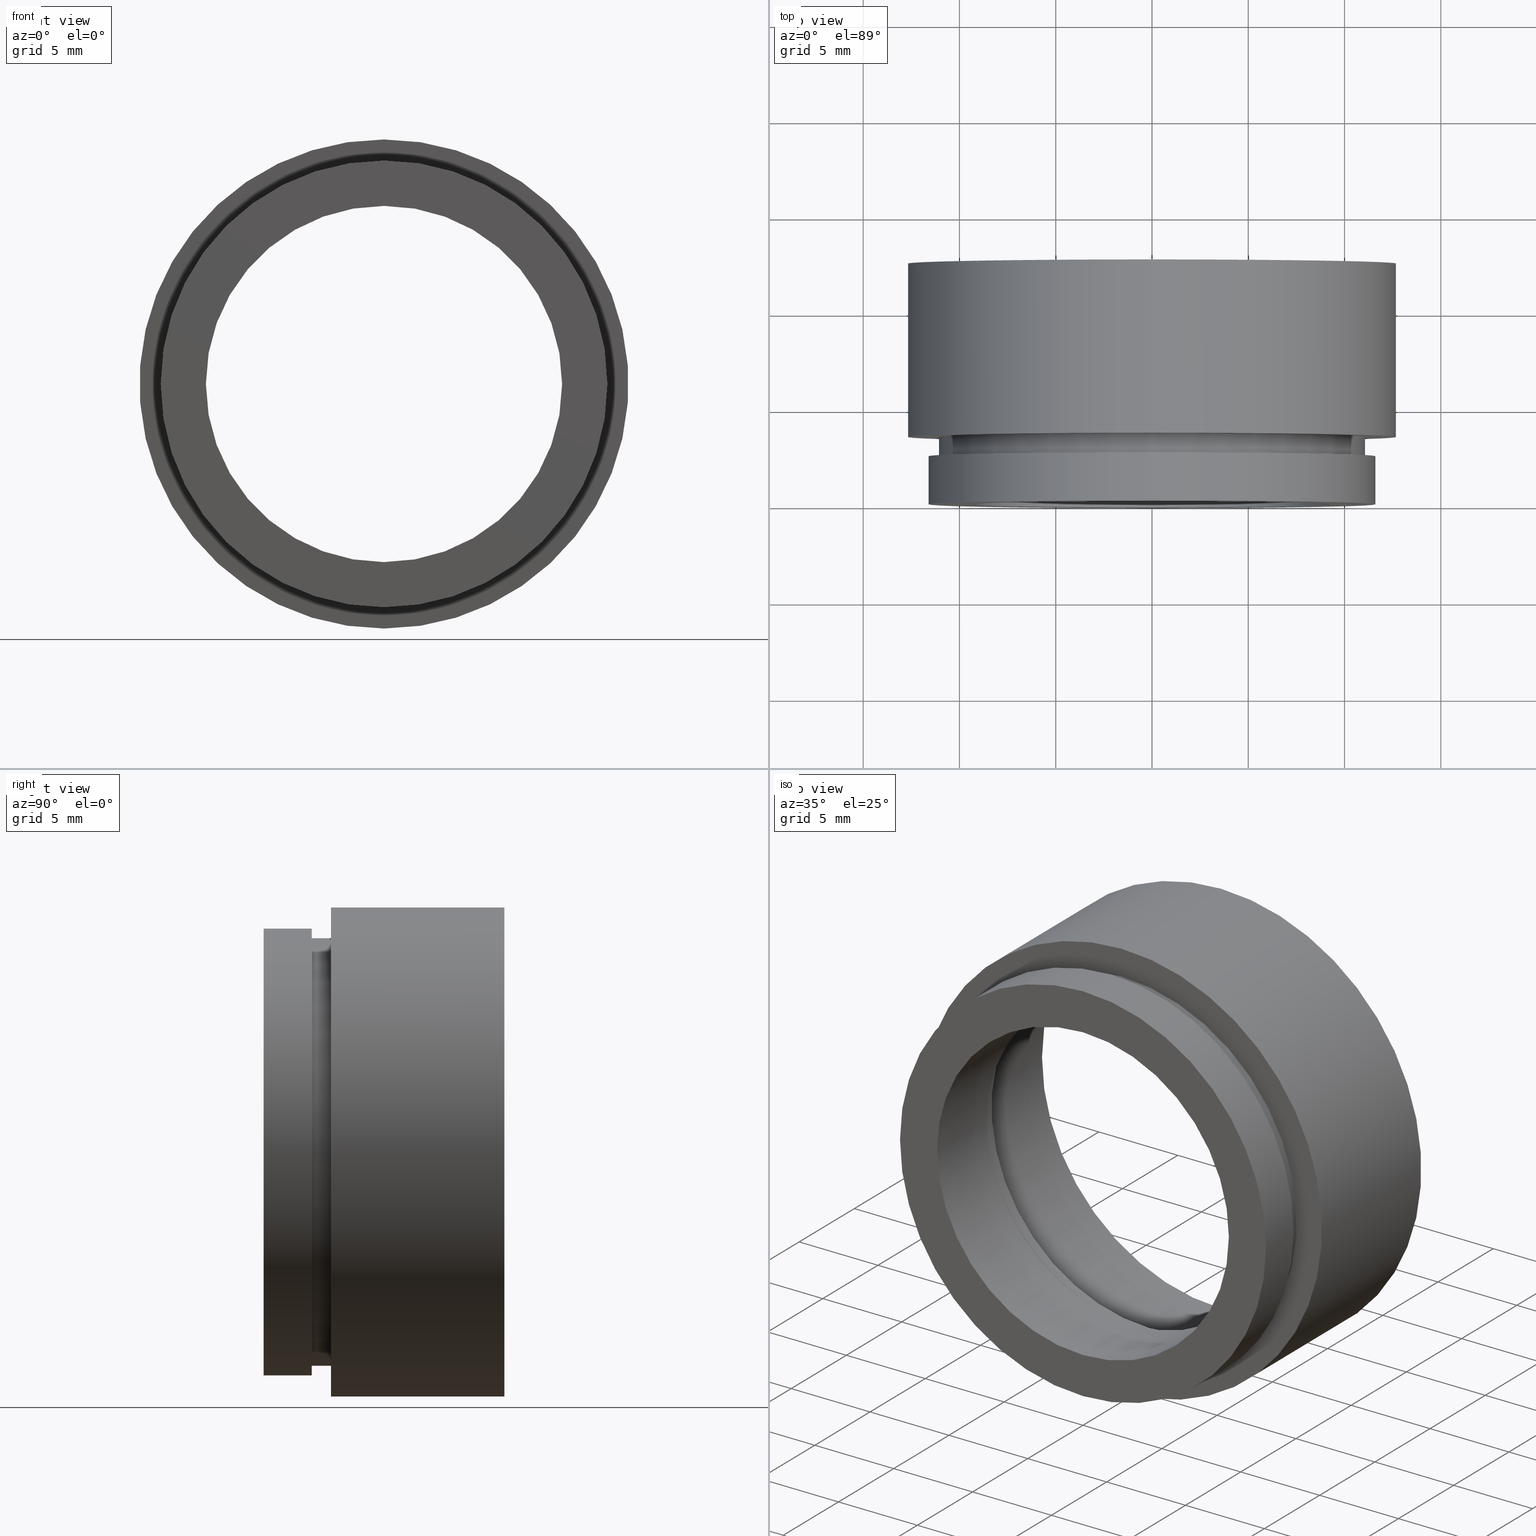
[diagram: canonical four-view strip — front | top / right | iso, engineering-drawing reading convention]
A machine part, canonical four-view strip (front | top / right | iso — engineering-drawing reading convention). The complete STEP part file that produces these views, byte-faithful:
ISO-10303-21;
HEADER;
FILE_DESCRIPTION (( 'STEP AP203' ),
    '1' );
FILE_NAME ('501005.STEP',
    '2019-08-30T10:08:16',
    ( '' ),
    ( '' ),
    'SwSTEP 2.0',
    'SolidWorks 2016',
    '' );
FILE_SCHEMA (( 'CONFIG_CONTROL_DESIGN' ));
ENDSEC;

DATA;
#1 = EDGE_CURVE ( 'NONE', #621, #558, #480, .T. ) ;
#2 = DATE_AND_TIME ( #224, #374 ) ;
#3 = VECTOR ( 'NONE', #407, 1000.000000000000000 ) ;
#4 = ORIENTED_EDGE ( 'NONE', *, *, #493, .T. ) ;
#5 = AXIS2_PLACEMENT_3D ( 'NONE', #206, #598, #428 ) ;
#6 = CARTESIAN_POINT ( 'NONE',  ( 0.0000000000000000000, 0.0000000000000000000, -11.60000000000000000 ) ) ;
#7 = CARTESIAN_POINT ( 'NONE',  ( 1.132798289211301700E-015, 0.0000000000000000000, 9.250000000000000000 ) ) ;
#8 = UNCERTAINTY_MEASURE_WITH_UNIT (LENGTH_MEASURE( 1.000000000000000100E-005 ), #542, 'distance_accuracy_value', 'NONE');
#9 = EDGE_CURVE ( 'NONE', #550, #491, #31, .T. ) ;
#10 = PLANE ( 'NONE',  #201 ) ;
#11 = CARTESIAN_POINT ( 'NONE',  ( 0.0000000000000000000, 4.500000000000000000, 0.0000000000000000000 ) ) ;
#12 = CIRCLE ( 'NONE', #298, 11.69999999999999900 ) ;
#13 = ORIENTED_EDGE ( 'NONE', *, *, #642, .F. ) ;
#14 = VERTEX_POINT ( 'NONE', #7 ) ;
#15 = DIRECTION ( 'NONE',  ( -0.0000000000000000000, -1.000000000000000000, -0.0000000000000000000 ) ) ;
#16 = CARTESIAN_POINT ( 'NONE',  ( 0.0000000000000000000, 0.0000000000000000000, 0.0000000000000000000 ) ) ;
#17 = AXIS2_PLACEMENT_3D ( 'NONE', #675, #292, #617 ) ;
#18 = PERSON_AND_ORGANIZATION ( #365, #434 ) ;
#19 = PLANE ( 'NONE',  #253 ) ;
#20 = FACE_OUTER_BOUND ( 'NONE', #518, .T. ) ;
#21 = CIRCLE ( 'NONE', #165, 11.35000000000000000 ) ;
#22 = ORIENTED_EDGE ( 'NONE', *, *, #611, .T. ) ;
#23 = PLANE ( 'NONE',  #59 ) ;
#24 = EDGE_CURVE ( 'NONE', #462, #648, #71, .T. ) ;
#25 = DIRECTION ( 'NONE',  ( 0.0000000000000000000, 0.0000000000000000000, -1.000000000000000000 ) ) ;
#26 = CARTESIAN_POINT ( 'NONE',  ( 1.432836755002403100E-015, 6.000000000000000900, 11.69999999999999900 ) ) ;
#27 = APPROVAL_DATE_TIME ( #222, #441 ) ;
#28 = FACE_OUTER_BOUND ( 'NONE', #437, .T. ) ;
#29 = AXIS2_PLACEMENT_3D ( 'NONE', #309, #251, #421 ) ;
#30 = CARTESIAN_POINT ( 'NONE',  ( 0.0000000000000000000, 0.0000000000000000000, 0.0000000000000000000 ) ) ;
#31 = LINE ( 'NONE', #183, #470 ) ;
#32 = VERTEX_POINT ( 'NONE', #673 ) ;
#33 = EDGE_CURVE ( 'NONE', #406, #328, #682, .T. ) ;
#34 = DIRECTION ( 'NONE',  ( 0.0000000000000000000, 0.0000000000000000000, -1.000000000000000000 ) ) ;
#35 = DIRECTION ( 'NONE',  ( -0.0000000000000000000, -1.000000000000000000, -0.0000000000000000000 ) ) ;
#36 = DATE_AND_TIME ( #687, #612 ) ;
#37 = AXIS2_PLACEMENT_3D ( 'NONE', #239, #179, #457 ) ;
#38 = FACE_OUTER_BOUND ( 'NONE', #703, .T. ) ;
#39 = FACE_OUTER_BOUND ( 'NONE', #724, .T. ) ;
#40 = CC_DESIGN_PERSON_AND_ORGANIZATION_ASSIGNMENT ( #451, #52, ( #473 ) ) ;
#41 = ORIENTED_EDGE ( 'NONE', *, *, #511, .T. ) ;
#42 = CARTESIAN_POINT ( 'NONE',  ( 1.389974117032245900E-015, 7.000000000000000900, 11.35000000000000000 ) ) ;
#43 = DIRECTION ( 'NONE',  ( -0.0000000000000000000, -1.000000000000000000, -0.0000000000000000000 ) ) ;
#44 = PERSON_AND_ORGANIZATION_ROLE ( 'design_supplier' ) ;
#45 = AXIS2_PLACEMENT_3D ( 'NONE', #635, #314, #198 ) ;
#46 = ADVANCED_FACE ( 'NONE', ( #689, #579 ), #512, .T. ) ;
#47 = EDGE_CURVE ( 'NONE', #388, #32, #93, .T. ) ;
#48 = MECHANICAL_CONTEXT ( 'NONE', #553, 'mechanical' ) ;
#49 = CYLINDRICAL_SURFACE ( 'NONE', #347, 11.69999999999999900 ) ;
#50 = EDGE_LOOP ( 'NONE', ( #638, #408 ) ) ;
#51 = ORIENTED_EDGE ( 'NONE', *, *, #611, .F. ) ;
#52 = PERSON_AND_ORGANIZATION_ROLE ( 'design_supplier' ) ;
#53 = CC_DESIGN_DATE_AND_TIME_ASSIGNMENT ( #655, #656, ( #154 ) ) ;
#54 = DATE_AND_TIME ( #205, #133 ) ;
#55 = FACE_BOUND ( 'NONE', #128, .T. ) ;
#56 = CIRCLE ( 'NONE', #424, 11.35000000000000000 ) ;
#57 = DESIGN_CONTEXT ( 'detailed design', #494, 'design' ) ;
#58 = ORIENTED_EDGE ( 'NONE', *, *, #691, .F. ) ;
#59 = AXIS2_PLACEMENT_3D ( 'NONE', #410, #633, #132 ) ;
#60 = CARTESIAN_POINT ( 'NONE',  ( 0.0000000000000000000, 6.000000000000000000, -9.999999999999998200 ) ) ;
#61 = CIRCLE ( 'NONE', #718, 11.60000000000000000 ) ;
#62 = EDGE_LOOP ( 'NONE', ( #377, #400, #118, #463 ) ) ;
#63 = ORIENTED_EDGE ( 'NONE', *, *, #572, .T. ) ;
#64 = DIRECTION ( 'NONE',  ( -0.0000000000000000000, -1.000000000000000000, -0.0000000000000000000 ) ) ;
#65 = CC_DESIGN_PERSON_AND_ORGANIZATION_ASSIGNMENT ( #570, #44, ( #506 ) ) ;
#66 = DIRECTION ( 'NONE',  ( -0.0000000000000000000, -1.000000000000000000, -0.0000000000000000000 ) ) ;
#67 = CARTESIAN_POINT ( 'NONE',  ( 0.0000000000000000000, 0.0000000000000000000, 0.0000000000000000000 ) ) ;
#68 = EDGE_CURVE ( 'NONE', #550, #555, #21, .T. ) ;
#69 = DIRECTION ( 'NONE',  ( -0.0000000000000000000, -1.000000000000000000, -0.0000000000000000000 ) ) ;
#70 = PERSON_AND_ORGANIZATION ( #365, #434 ) ;
#71 = LINE ( 'NONE', #119, #261 ) ;
#72 = VERTEX_POINT ( 'NONE', #60 ) ;
#73 = CARTESIAN_POINT ( 'NONE',  ( 0.0000000000000000000, 6.000000000000000900, 0.0000000000000000000 ) ) ;
#74 = AXIS2_PLACEMENT_3D ( 'NONE', #476, #193, #135 ) ;
#75 = CARTESIAN_POINT ( 'NONE',  ( 0.0000000000000000000, 12.50000000000000000, 0.0000000000000000000 ) ) ;
#76 = DIRECTION ( 'NONE',  ( 0.0000000000000000000, 0.0000000000000000000, -1.000000000000000000 ) ) ;
#77 = CARTESIAN_POINT ( 'NONE',  ( 0.0000000000000000000, 7.000000000000000900, 0.0000000000000000000 ) ) ;
#78 = CARTESIAN_POINT ( 'NONE',  ( 0.0000000000000000000, 0.0000000000000000000, -9.250000000000000000 ) ) ;
#79 = AXIS2_PLACEMENT_3D ( 'NONE', #467, #311, #694 ) ;
#80 = EDGE_CURVE ( 'NONE', #683, #32, #646, .T. ) ;
#81 = CALENDAR_DATE ( 2019, 30, 8 ) ;
#82 = FACE_OUTER_BOUND ( 'NONE', #454, .T. ) ;
#83 = FACE_OUTER_BOUND ( 'NONE', #620, .T. ) ;
#84 = ORIENTED_EDGE ( 'NONE', *, *, #720, .T. ) ;
#85 = ORIENTED_EDGE ( 'NONE', *, *, #122, .F. ) ;
#86 = CARTESIAN_POINT ( 'NONE',  ( 1.432836755002403100E-015, 7.000000000000000900, 11.69999999999999900 ) ) ;
#87 = CARTESIAN_POINT ( 'NONE',  ( 0.0000000000000000000, 2.500000000000000000, 0.0000000000000000000 ) ) ;
#88 = EDGE_CURVE ( 'NONE', #14, #558, #490, .T. ) ;
#89 = CARTESIAN_POINT ( 'NONE',  ( 0.0000000000000000000, 0.0000000000000000000, 0.0000000000000000000 ) ) ;
#90 = CARTESIAN_POINT ( 'NONE',  ( 0.0000000000000000000, 3.500000000000000000, -12.69999999999999900 ) ) ;
#91 = LOCAL_TIME ( 18, 8, 16.00000000000000000, #353 ) ;
#92 = DIRECTION ( 'NONE',  ( -0.0000000000000000000, -1.000000000000000000, -0.0000000000000000000 ) ) ;
#93 = CIRCLE ( 'NONE', #37, 11.10000000000000000 ) ;
#94 = CARTESIAN_POINT ( 'NONE',  ( 0.0000000000000000000, 4.500000000000000000, 0.0000000000000000000 ) ) ;
#95 = ORIENTED_EDGE ( 'NONE', *, *, #196, .T. ) ;
#96 = CARTESIAN_POINT ( 'NONE',  ( 0.0000000000000000000, 6.000000000000000900, 0.0000000000000000000 ) ) ;
#97 = PLANE ( 'NONE',  #174 ) ;
#98 = AXIS2_PLACEMENT_3D ( 'NONE', #16, #363, #584 ) ;
#99 = ADVANCED_FACE ( 'NONE', ( #416 ), #384, .T. ) ;
#100 = DIRECTION ( 'NONE',  ( 0.0000000000000000000, 0.0000000000000000000, -1.000000000000000000 ) ) ;
#101 = PERSON_AND_ORGANIZATION ( #365, #434 ) ;
#102 = AXIS2_PLACEMENT_3D ( 'NONE', #315, #307, #523 ) ;
#103 = LINE ( 'NONE', #321, #382 ) ;
#104 = CIRCLE ( 'NONE', #367, 11.69999999999999900 ) ;
#105 = ORIENTED_EDGE ( 'NONE', *, *, #313, .T. ) ;
#106 = ORIENTED_EDGE ( 'NONE', *, *, #332, .F. ) ;
#107 = APPROVAL_STATUS ( 'not_yet_approved' ) ;
#108 = CARTESIAN_POINT ( 'NONE',  ( 1.555301434917138400E-015, 3.500000000000000000, 12.69999999999999900 ) ) ;
#109 = ADVANCED_FACE ( 'NONE', ( #325, #112 ), #10, .T. ) ;
#110 = CALENDAR_DATE ( 2019, 30, 8 ) ;
#111 = APPLICATION_PROTOCOL_DEFINITION ( 'international standard', 'config_control_design', 1994, #281 ) ;
#112 = FACE_OUTER_BOUND ( 'NONE', #601, .T. ) ;
#113 = EDGE_CURVE ( 'NONE', #328, #406, #546, .T. ) ;
#114 = CLOSED_SHELL ( 'NONE', ( #540, #333, #326, #379, #438, #99, #163, #719, #547, #219, #653, #167, #715, #276, #46, #661, #150, #390, #212, #389, #109 ) ) ;
#115 = VERTEX_POINT ( 'NONE', #86 ) ;
#116 = DATE_AND_TIME ( #153, #468 ) ;
#117 = FACE_OUTER_BOUND ( 'NONE', #481, .T. ) ;
#118 = ORIENTED_EDGE ( 'NONE', *, *, #319, .T. ) ;
#119 = CARTESIAN_POINT ( 'NONE',  ( 0.0000000000000000000, 0.0000000000000000000, -11.69999999999999900 ) ) ;
#120 = CC_DESIGN_PERSON_AND_ORGANIZATION_ASSIGNMENT ( #101, #336, ( #303 ) ) ;
#121 = DIRECTION ( 'NONE',  ( -0.0000000000000000000, -1.000000000000000000, -0.0000000000000000000 ) ) ;
#122 = EDGE_CURVE ( 'NONE', #462, #115, #104, .T. ) ;
#123 = DIRECTION ( 'NONE',  ( 0.0000000000000000000, -0.0000000000000000000, 1.000000000000000000 ) ) ;
#124 = APPROVAL_DATE_TIME ( #2, #677 ) ;
#125 = DIRECTION ( 'NONE',  ( 0.0000000000000000000, -0.0000000000000000000, 1.000000000000000000 ) ) ;
#126 = ORIENTED_EDGE ( 'NONE', *, *, #720, .F. ) ;
#127 = ORIENTED_EDGE ( 'NONE', *, *, #313, .F. ) ;
#128 = EDGE_LOOP ( 'NONE', ( #582, #358 ) ) ;
#129 = CARTESIAN_POINT ( 'NONE',  ( 0.0000000000000000000, 0.0000000000000000000, 0.0000000000000000000 ) ) ;
#130 = DIRECTION ( 'NONE',  ( -0.0000000000000000000, -1.000000000000000000, -0.0000000000000000000 ) ) ;
#131 = AXIS2_PLACEMENT_3D ( 'NONE', #650, #372, #485 ) ;
#132 = DIRECTION ( 'NONE',  ( 0.0000000000000000000, 0.0000000000000000000, -1.000000000000000000 ) ) ;
#133 = LOCAL_TIME ( 18, 8, 16.00000000000000000, #526 ) ;
#134 = VECTOR ( 'NONE', #541, 1000.000000000000000 ) ;
#135 = DIRECTION ( 'NONE',  ( 0.0000000000000000000, 0.0000000000000000000, -1.000000000000000000 ) ) ;
#136 = ORIENTED_EDGE ( 'NONE', *, *, #80, .T. ) ;
#137 = EDGE_CURVE ( 'NONE', #555, #550, #226, .T. ) ;
#138 = DIRECTION ( 'NONE',  ( -0.0000000000000000000, -1.000000000000000000, -0.0000000000000000000 ) ) ;
#139 = DIRECTION ( 'NONE',  ( -0.0000000000000000000, -1.000000000000000000, -0.0000000000000000000 ) ) ;
#140 = DIRECTION ( 'NONE',  ( -0.0000000000000000000, -1.000000000000000000, -0.0000000000000000000 ) ) ;
#141 = AXIS2_PLACEMENT_3D ( 'NONE', #604, #714, #274 ) ;
#142 = COORDINATED_UNIVERSAL_TIME_OFFSET ( 8, 0, .AHEAD. ) ;
#143 = DIRECTION ( 'NONE',  ( 1.000000000000000000, 0.0000000000000000000, 0.0000000000000000000 ) ) ;
#144 = ORIENTED_EDGE ( 'NONE', *, *, #33, .F. ) ;
#145 = VERTEX_POINT ( 'NONE', #471 ) ;
#146 = CARTESIAN_POINT ( 'NONE',  ( 0.0000000000000000000, 0.0000000000000000000, 0.0000000000000000000 ) ) ;
#147 = CARTESIAN_POINT ( 'NONE',  ( 0.0000000000000000000, 0.0000000000000000000, 0.0000000000000000000 ) ) ;
#148 = EDGE_CURVE ( 'NONE', #536, #406, #528, .T. ) ;
#149 = DIRECTION ( 'NONE',  ( -0.0000000000000000000, -1.000000000000000000, -0.0000000000000000000 ) ) ;
#150 = ADVANCED_FACE ( 'NONE', ( #504, #208 ), #23, .T. ) ;
#151 = CARTESIAN_POINT ( 'NONE',  ( 0.0000000000000000000, 0.0000000000000000000, -12.69999999999999900 ) ) ;
#152 = EDGE_CURVE ( 'NONE', #159, #465, #626, .T. ) ;
#153 = CALENDAR_DATE ( 2019, 30, 8 ) ;
#154 = SECURITY_CLASSIFICATION ( '', '', #495 ) ;
#155 = CYLINDRICAL_SURFACE ( 'NONE', #409, 9.250000000000000000 ) ;
#156 = DIRECTION ( 'NONE',  ( 0.0000000000000000000, 0.0000000000000000000, -1.000000000000000000 ) ) ;
#157 = LINE ( 'NONE', #266, #535 ) ;
#158 = VERTEX_POINT ( 'NONE', #520 ) ;
#159 = VERTEX_POINT ( 'NONE', #474 ) ;
#160 = APPROVAL_ROLE ( '' ) ;
#161 = PRODUCT_DEFINITION ( 'δ֪', '', #506, #57 ) ;
#162 = EDGE_CURVE ( 'NONE', #536, #448, #343, .T. ) ;
#163 = ADVANCED_FACE ( 'NONE', ( #435 ), #614, .F. ) ;
#164 = DIRECTION ( 'NONE',  ( 0.0000000000000000000, 0.0000000000000000000, -1.000000000000000000 ) ) ;
#165 = AXIS2_PLACEMENT_3D ( 'NONE', #299, #64, #237 ) ;
#166 = CIRCLE ( 'NONE', #256, 11.10000000000000000 ) ;
#167 = ADVANCED_FACE ( 'NONE', ( #83 ), #250, .T. ) ;
#168 = ORIENTED_EDGE ( 'NONE', *, *, #152, .F. ) ;
#169 = ORIENTED_EDGE ( 'NONE', *, *, #148, .T. ) ;
#170 = APPLICATION_PROTOCOL_DEFINITION ( 'international standard', 'config_control_design', 1994, #494 ) ;
#171 = APPROVAL_DATE_TIME ( #36, #606 ) ;
#172 = LINE ( 'NONE', #370, #225 ) ;
#173 = CIRCLE ( 'NONE', #289, 9.999999999999998200 ) ;
#174 = AXIS2_PLACEMENT_3D ( 'NONE', #378, #204, #213 ) ;
#175 = ORIENTED_EDGE ( 'NONE', *, *, #148, .F. ) ;
#176 = AXIS2_PLACEMENT_3D ( 'NONE', #577, #301, #25 ) ;
#177 = DIRECTION ( 'NONE',  ( 0.0000000000000000000, 0.0000000000000000000, -1.000000000000000000 ) ) ;
#178 = CYLINDRICAL_SURFACE ( 'NONE', #131, 12.69999999999999900 ) ;
#179 = DIRECTION ( 'NONE',  ( -0.0000000000000000000, -1.000000000000000000, -0.0000000000000000000 ) ) ;
#180 = CC_DESIGN_APPROVAL ( #312, ( #161 ) ) ;
#181 = ORIENTED_EDGE ( 'NONE', *, *, #713, .T. ) ;
#182 = VERTEX_POINT ( 'NONE', #247 ) ;
#183 = CARTESIAN_POINT ( 'NONE',  ( 0.0000000000000000000, 0.0000000000000000000, -11.35000000000000000 ) ) ;
#184 = CC_DESIGN_APPROVAL ( #677, ( #637 ) ) ;
#185 = PERSON_AND_ORGANIZATION ( #365, #434 ) ;
#186 = DIRECTION ( 'NONE',  ( -0.0000000000000000000, -1.000000000000000000, -0.0000000000000000000 ) ) ;
#187 = CIRCLE ( 'NONE', #371, 9.250000000000000000 ) ;
#188 = FACE_OUTER_BOUND ( 'NONE', #505, .T. ) ;
#189 = ORIENTED_EDGE ( 'NONE', *, *, #380, .F. ) ;
#190 = EDGE_CURVE ( 'NONE', #318, #159, #600, .T. ) ;
#191 = DIRECTION ( 'NONE',  ( 0.0000000000000000000, -0.0000000000000000000, 1.000000000000000000 ) ) ;
#192 = CARTESIAN_POINT ( 'NONE',  ( 0.0000000000000000000, 6.000000000000000900, -11.69999999999999900 ) ) ;
#193 = DIRECTION ( 'NONE',  ( -0.0000000000000000000, -1.000000000000000000, -0.0000000000000000000 ) ) ;
#194 = PLANE ( 'NONE',  #45 ) ;
#195 = AXIS2_PLACEMENT_3D ( 'NONE', #67, #459, #466 ) ;
#196 = EDGE_CURVE ( 'NONE', #182, #388, #405, .T. ) ;
#197 = DIRECTION ( 'NONE',  ( 0.0000000000000000000, 0.0000000000000000000, -1.000000000000000000 ) ) ;
#198 = DIRECTION ( 'NONE',  ( 0.0000000000000000000, 0.0000000000000000000, -1.000000000000000000 ) ) ;
#199 = ORIENTED_EDGE ( 'NONE', *, *, #68, .F. ) ;
#200 = ORIENTED_EDGE ( 'NONE', *, *, #500, .F. ) ;
#201 = AXIS2_PLACEMENT_3D ( 'NONE', #403, #461, #123 ) ;
#202 = ORIENTED_EDGE ( 'NONE', *, *, #24, .T. ) ;
#203 = DIRECTION ( 'NONE',  ( 0.0000000000000000000, 0.0000000000000000000, -1.000000000000000000 ) ) ;
#204 = DIRECTION ( 'NONE',  ( 0.0000000000000000000, -1.000000000000000000, -0.0000000000000000000 ) ) ;
#205 = CALENDAR_DATE ( 2019, 30, 8 ) ;
#206 = CARTESIAN_POINT ( 'NONE',  ( 0.0000000000000000000, 0.0000000000000000000, 0.0000000000000000000 ) ) ;
#207 = CYLINDRICAL_SURFACE ( 'NONE', #559, 11.69999999999999900 ) ;
#208 = FACE_BOUND ( 'NONE', #456, .T. ) ;
#209 = ORIENTED_EDGE ( 'NONE', *, *, #196, .F. ) ;
#210 = CARTESIAN_POINT ( 'NONE',  ( 1.224646799147353100E-015, 6.000000000000000000, 9.999999999999998200 ) ) ;
#211 = ORIENTED_EDGE ( 'NONE', *, *, #413, .F. ) ;
#212 = ADVANCED_FACE ( 'NONE', ( #399, #188 ), #19, .T. ) ;
#213 = DIRECTION ( 'NONE',  ( 0.0000000000000000000, 0.0000000000000000000, -1.000000000000000000 ) ) ;
#214 = DATE_TIME_ROLE ( 'creation_date' ) ;
#215 = AXIS2_PLACEMENT_3D ( 'NONE', #364, #139, #359 ) ;
#216 = CIRCLE ( 'NONE', #596, 11.10000000000000000 ) ;
#217 = ORIENTED_EDGE ( 'NONE', *, *, #511, .F. ) ;
#218 = ORIENTED_EDGE ( 'NONE', *, *, #348, .F. ) ;
#219 = ADVANCED_FACE ( 'NONE', ( #272 ), #243, .T. ) ;
#220 = APPROVAL_ROLE ( '' ) ;
#221 = AXIS2_PLACEMENT_3D ( 'NONE', #147, #262, #317 ) ;
#222 = DATE_AND_TIME ( #444, #701 ) ;
#223 = APPROVAL_ROLE ( '' ) ;
#224 = CALENDAR_DATE ( 2019, 30, 8 ) ;
#225 = VECTOR ( 'NONE', #327, 1000.000000000000000 ) ;
#226 = CIRCLE ( 'NONE', #631, 11.35000000000000000 ) ;
#227 = ORIENTED_EDGE ( 'NONE', *, *, #380, .T. ) ;
#228 = AXIS2_PLACEMENT_3D ( 'NONE', #594, #533, #652 ) ;
#229 = CC_DESIGN_APPROVAL ( #441, ( #154 ) ) ;
#230 = PERSON_AND_ORGANIZATION ( #365, #434 ) ;
#231 = CIRCLE ( 'NONE', #29, 12.70000000000000100 ) ;
#232 = CARTESIAN_POINT ( 'NONE',  ( 12.70000000000000100, 12.50000000000000000, 0.0000000000000000000 ) ) ;
#233 = CIRCLE ( 'NONE', #228, 11.60000000000000000 ) ;
#234 =( GEOMETRIC_REPRESENTATION_CONTEXT ( 3 ) GLOBAL_UNCERTAINTY_ASSIGNED_CONTEXT ( ( #8 ) ) GLOBAL_UNIT_ASSIGNED_CONTEXT ( ( #542, #267, #640 ) ) REPRESENTATION_CONTEXT ( 'NONE', 'WORKASPACE' ) );
#235 = EDGE_CURVE ( 'NONE', #318, #72, #173, .T. ) ;
#236 = ORIENTED_EDGE ( 'NONE', *, *, #603, .T. ) ;
#237 = DIRECTION ( 'NONE',  ( 0.0000000000000000000, 0.0000000000000000000, -1.000000000000000000 ) ) ;
#238 = AXIS2_PLACEMENT_3D ( 'NONE', #567, #618, #291 ) ;
#239 = CARTESIAN_POINT ( 'NONE',  ( 0.0000000000000000000, 2.500000000000000000, 0.0000000000000000000 ) ) ;
#240 = DIRECTION ( 'NONE',  ( 0.0000000000000000000, 0.0000000000000000000, -1.000000000000000000 ) ) ;
#241 = CARTESIAN_POINT ( 'NONE',  ( 0.0000000000000000000, 4.500000000000000900, -9.999999999999998200 ) ) ;
#242 = PERSON_AND_ORGANIZATION ( #365, #434 ) ;
#243 = CYLINDRICAL_SURFACE ( 'NONE', #586, 11.60000000000000000 ) ;
#244 = ORIENTED_EDGE ( 'NONE', *, *, #9, .F. ) ;
#245 = DESIGN_CONTEXT ( 'detailed design', #281, 'design' ) ;
#246 = CC_DESIGN_PERSON_AND_ORGANIZATION_ASSIGNMENT ( #70, #605, ( #506 ) ) ;
#247 = CARTESIAN_POINT ( 'NONE',  ( 0.0000000000000000000, 3.500000000000000000, -11.10000000000000000 ) ) ;
#248 = CARTESIAN_POINT ( 'NONE',  ( 0.0000000000000000000, 7.000000000000000900, 0.0000000000000000000 ) ) ;
#249 = PERSON_AND_ORGANIZATION ( #365, #434 ) ;
#250 = CYLINDRICAL_SURFACE ( 'NONE', #215, 11.10000000000000000 ) ;
#251 = DIRECTION ( 'NONE',  ( -0.0000000000000000000, -1.000000000000000000, -0.0000000000000000000 ) ) ;
#252 = ORIENTED_EDGE ( 'NONE', *, *, #345, .F. ) ;
#253 = AXIS2_PLACEMENT_3D ( 'NONE', #411, #686, #191 ) ;
#254 = EDGE_LOOP ( 'NONE', ( #619, #593 ) ) ;
#255 = DIRECTION ( 'NONE',  ( 0.0000000000000000000, 0.0000000000000000000, -1.000000000000000000 ) ) ;
#256 = AXIS2_PLACEMENT_3D ( 'NONE', #514, #678, #679 ) ;
#257 = CARTESIAN_POINT ( 'NONE',  ( 0.0000000000000000000, 0.0000000000000000000, -9.999999999999998200 ) ) ;
#258 = CARTESIAN_POINT ( 'NONE',  ( 0.0000000000000000000, 0.0000000000000000000, 0.0000000000000000000 ) ) ;
#259 = PERSON_AND_ORGANIZATION ( #365, #434 ) ;
#260 = DIRECTION ( 'NONE',  ( 0.0000000000000000000, 0.0000000000000000000, -1.000000000000000000 ) ) ;
#261 = VECTOR ( 'NONE', #69, 1000.000000000000000 ) ;
#262 = DIRECTION ( 'NONE',  ( -0.0000000000000000000, -1.000000000000000000, -0.0000000000000000000 ) ) ;
#263 = ORIENTED_EDGE ( 'NONE', *, *, #685, .F. ) ;
#264 = CC_DESIGN_APPROVAL ( #606, ( #506 ) ) ;
#265 = ORIENTED_EDGE ( 'NONE', *, *, #642, .T. ) ;
#266 = CARTESIAN_POINT ( 'NONE',  ( 1.132798289211301700E-015, 0.0000000000000000000, 9.250000000000000000 ) ) ;
#267 =( NAMED_UNIT ( * ) PLANE_ANGLE_UNIT ( ) SI_UNIT ( $, .RADIAN. ) );
#268 = EDGE_CURVE ( 'NONE', #704, #158, #233, .T. ) ;
#269 = CARTESIAN_POINT ( 'NONE',  ( 0.0000000000000000000, 6.000000000000000000, 0.0000000000000000000 ) ) ;
#270 = APPROVAL_PERSON_ORGANIZATION ( #624, #312, #160 ) ;
#271 = APPROVAL_STATUS ( 'not_yet_approved' ) ;
#272 = FACE_OUTER_BOUND ( 'NONE', #369, .T. ) ;
#273 = ORIENTED_EDGE ( 'NONE', *, *, #532, .F. ) ;
#274 = DIRECTION ( 'NONE',  ( 0.0000000000000000000, 0.0000000000000000000, -1.000000000000000000 ) ) ;
#275 = EDGE_LOOP ( 'NONE', ( #51, #308 ) ) ;
#276 = ADVANCED_FACE ( 'NONE', ( #117 ), #517, .T. ) ;
#277 = APPROVAL_STATUS ( 'not_yet_approved' ) ;
#278 = AXIS2_PLACEMENT_3D ( 'NONE', #717, #498, #164 ) ;
#279 = APPROVAL_ROLE ( '' ) ;
#280 = APPROVAL_DATE_TIME ( #425, #312 ) ;
#281 = APPLICATION_CONTEXT ( 'configuration controlled 3d designs of mechanical parts and assemblies' ) ;
#282 = EDGE_LOOP ( 'NONE', ( #429, #263, #564, #84 ) ) ;
#283 = ORIENTED_EDGE ( 'NONE', *, *, #268, .T. ) ;
#284 = CC_DESIGN_SECURITY_CLASSIFICATION ( #637, ( #506 ) ) ;
#285 = DATE_AND_TIME ( #544, #664 ) ;
#286 = FACE_BOUND ( 'NONE', #530, .T. ) ;
#287 = LINE ( 'NONE', #257, #134 ) ;
#288 = ORIENTED_EDGE ( 'NONE', *, *, #348, .T. ) ;
#289 = AXIS2_PLACEMENT_3D ( 'NONE', #269, #706, #100 ) ;
#290 = DIRECTION ( 'NONE',  ( -0.0000000000000000000, -1.000000000000000000, -0.0000000000000000000 ) ) ;
#291 = DIRECTION ( 'NONE',  ( 0.0000000000000000000, 0.0000000000000000000, -1.000000000000000000 ) ) ;
#292 = DIRECTION ( 'NONE',  ( -0.0000000000000000000, -1.000000000000000000, -0.0000000000000000000 ) ) ;
#293 = APPROVAL_PERSON_ORGANIZATION ( #508, #441, #223 ) ;
#294 = DIRECTION ( 'NONE',  ( -0.0000000000000000000, -1.000000000000000000, -0.0000000000000000000 ) ) ;
#295 = PRODUCT_DEFINITION ( 'δ֪', '', #473, #245 ) ;
#296 = VERTEX_POINT ( 'NONE', #42 ) ;
#297 = ORIENTED_EDGE ( 'NONE', *, *, #685, .T. ) ;
#298 = AXIS2_PLACEMENT_3D ( 'NONE', #73, #300, #475 ) ;
#299 = CARTESIAN_POINT ( 'NONE',  ( 0.0000000000000000000, 12.50000000000000000, 0.0000000000000000000 ) ) ;
#300 = DIRECTION ( 'NONE',  ( -0.0000000000000000000, -1.000000000000000000, -0.0000000000000000000 ) ) ;
#301 = DIRECTION ( 'NONE',  ( -0.0000000000000000000, -1.000000000000000000, -0.0000000000000000000 ) ) ;
#302 = DIRECTION ( 'NONE',  ( -0.0000000000000000000, -1.000000000000000000, -0.0000000000000000000 ) ) ;
#303 = PRODUCT ( '501005', '501005', '', ( #48 ) ) ;
#304 = COORDINATED_UNIVERSAL_TIME_OFFSET ( 8, 0, .AHEAD. ) ;
#305 = FACE_BOUND ( 'NONE', #608, .T. ) ;
#306 = FACE_OUTER_BOUND ( 'NONE', #62, .T. ) ;
#307 = DIRECTION ( 'NONE',  ( -0.0000000000000000000, -1.000000000000000000, -0.0000000000000000000 ) ) ;
#308 = ORIENTED_EDGE ( 'NONE', *, *, #162, .F. ) ;
#309 = CARTESIAN_POINT ( 'NONE',  ( 0.0000000000000000000, 12.50000000000000000, 0.0000000000000000000 ) ) ;
#310 = CARTESIAN_POINT ( 'NONE',  ( 1.555301434917138400E-015, 0.0000000000000000000, 12.69999999999999900 ) ) ;
#311 = DIRECTION ( 'NONE',  ( 0.0000000000000000000, 1.000000000000000000, 0.0000000000000000000 ) ) ;
#312 = APPROVAL ( #339, 'δָ��' ) ;
#313 = EDGE_CURVE ( 'NONE', #491, #296, #56, .T. ) ;
#314 = DIRECTION ( 'NONE',  ( 0.0000000000000000000, -1.000000000000000000, -0.0000000000000000000 ) ) ;
#315 = CARTESIAN_POINT ( 'NONE',  ( 0.0000000000000000000, 12.50000000000000000, 0.0000000000000000000 ) ) ;
#316 = FACE_OUTER_BOUND ( 'NONE', #386, .T. ) ;
#317 = DIRECTION ( 'NONE',  ( 0.0000000000000000000, 0.0000000000000000000, -1.000000000000000000 ) ) ;
#318 = VERTEX_POINT ( 'NONE', #210 ) ;
#319 = EDGE_CURVE ( 'NONE', #565, #648, #376, .T. ) ;
#320 = EDGE_LOOP ( 'NONE', ( #297, #419 ) ) ;
#321 = CARTESIAN_POINT ( 'NONE',  ( 1.420590287010929500E-015, 0.0000000000000000000, 11.60000000000000000 ) ) ;
#322 = CARTESIAN_POINT ( 'NONE',  ( 0.0000000000000000000, 6.000000000000000000, 0.0000000000000000000 ) ) ;
#323 = COORDINATED_UNIVERSAL_TIME_OFFSET ( 8, 0, .AHEAD. ) ;
#324 = CIRCLE ( 'NONE', #340, 11.10000000000000000 ) ;
#325 = FACE_BOUND ( 'NONE', #705, .T. ) ;
#326 = ADVANCED_FACE ( 'NONE', ( #39 ), #563, .F. ) ;
#327 = DIRECTION ( 'NONE',  ( -0.0000000000000000000, -1.000000000000000000, -0.0000000000000000000 ) ) ;
#328 = VERTEX_POINT ( 'NONE', #90 ) ;
#329 = APPROVAL ( #277, 'δָ��' ) ;
#330 = CARTESIAN_POINT ( 'NONE',  ( 0.0000000000000000000, 0.0000000000000000000, 0.0000000000000000000 ) ) ;
#331 = PERSON_AND_ORGANIZATION_ROLE ( 'creator' ) ;
#332 = EDGE_CURVE ( 'NONE', #145, #14, #157, .T. ) ;
#333 = ADVANCED_FACE ( 'NONE', ( #306 ), #207, .F. ) ;
#334 = VECTOR ( 'NONE', #346, 1000.000000000000000 ) ;
#335 = EDGE_LOOP ( 'NONE', ( #211, #199, #344, #105 ) ) ;
#336 = PERSON_AND_ORGANIZATION_ROLE ( 'design_owner' ) ;
#337 = ORIENTED_EDGE ( 'NONE', *, *, #532, .T. ) ;
#338 = AXIS2_PLACEMENT_3D ( 'NONE', #89, #482, #143 ) ;
#339 = APPROVAL_STATUS ( 'not_yet_approved' ) ;
#340 = AXIS2_PLACEMENT_3D ( 'NONE', #423, #537, #492 ) ;
#341 = DATE_AND_TIME ( #670, #723 ) ;
#342 = CIRCLE ( 'NONE', #98, 11.60000000000000000 ) ;
#343 = CIRCLE ( 'NONE', #102, 12.70000000000000100 ) ;
#344 = ORIENTED_EDGE ( 'NONE', *, *, #9, .T. ) ;
#345 = EDGE_CURVE ( 'NONE', #72, #465, #287, .T. ) ;
#346 = DIRECTION ( 'NONE',  ( -0.0000000000000000000, -1.000000000000000000, -0.0000000000000000000 ) ) ;
#347 = AXIS2_PLACEMENT_3D ( 'NONE', #330, #383, #721 ) ;
#348 = EDGE_CURVE ( 'NONE', #580, #158, #103, .T. ) ;
#349 = CIRCLE ( 'NONE', #361, 9.250000000000000000 ) ;
#350 = ORIENTED_EDGE ( 'NONE', *, *, #113, .F. ) ;
#351 = EDGE_LOOP ( 'NONE', ( #283, #265 ) ) ;
#352 = DIRECTION ( 'NONE',  ( -0.0000000000000000000, -1.000000000000000000, -0.0000000000000000000 ) ) ;
#353 = COORDINATED_UNIVERSAL_TIME_OFFSET ( 8, 0, .AHEAD. ) ;
#354 = CARTESIAN_POINT ( 'NONE',  ( 0.0000000000000000000, 0.0000000000000000000, 0.0000000000000000000 ) ) ;
#355 = FACE_OUTER_BOUND ( 'NONE', #609, .T. ) ;
#356 = VECTOR ( 'NONE', #138, 1000.000000000000000 ) ;
#357 = ORIENTED_EDGE ( 'NONE', *, *, #235, .F. ) ;
#358 = ORIENTED_EDGE ( 'NONE', *, *, #562, .T. ) ;
#359 = DIRECTION ( 'NONE',  ( 0.0000000000000000000, 0.0000000000000000000, -1.000000000000000000 ) ) ;
#360 = CARTESIAN_POINT ( 'NONE',  ( 0.0000000000000000000, 2.500000000000000000, -11.60000000000000000 ) ) ;
#361 = AXIS2_PLACEMENT_3D ( 'NONE', #11, #290, #479 ) ;
#362 = DIRECTION ( 'NONE',  ( -0.0000000000000000000, -1.000000000000000000, -0.0000000000000000000 ) ) ;
#363 = DIRECTION ( 'NONE',  ( -0.0000000000000000000, -1.000000000000000000, -0.0000000000000000000 ) ) ;
#364 = CARTESIAN_POINT ( 'NONE',  ( 0.0000000000000000000, 0.0000000000000000000, 0.0000000000000000000 ) ) ;
#365 = PERSON ( 'δָ��', 'δָ��', 'δָ��', ('δָ��'), ('δָ��'), ('δָ��') ) ;
#366 = COORDINATED_UNIVERSAL_TIME_OFFSET ( 8, 0, .AHEAD. ) ;
#367 = AXIS2_PLACEMENT_3D ( 'NONE', #77, #15, #255 ) ;
#368 = CYLINDRICAL_SURFACE ( 'NONE', #221, 11.35000000000000000 ) ;
#369 = EDGE_LOOP ( 'NONE', ( #218, #227, #658, #13 ) ) ;
#370 = CARTESIAN_POINT ( 'NONE',  ( 1.432836755002403100E-015, 0.0000000000000000000, 11.69999999999999900 ) ) ;
#371 = AXIS2_PLACEMENT_3D ( 'NONE', #94, #430, #700 ) ;
#372 = DIRECTION ( 'NONE',  ( -0.0000000000000000000, -1.000000000000000000, -0.0000000000000000000 ) ) ;
#373 = CARTESIAN_POINT ( 'NONE',  ( 0.0000000000000000000, 4.500000000000000900, 0.0000000000000000000 ) ) ;
#374 = LOCAL_TIME ( 18, 8, 16.00000000000000000, #516 ) ;
#375 = FACE_OUTER_BOUND ( 'NONE', #50, .T. ) ;
#376 = CIRCLE ( 'NONE', #552, 11.69999999999999900 ) ;
#377 = ORIENTED_EDGE ( 'NONE', *, *, #572, .F. ) ;
#378 = CARTESIAN_POINT ( 'NONE',  ( 11.10000000000000000, 3.500000000000000000, 0.0000000000000000000 ) ) ;
#379 = ADVANCED_FACE ( 'NONE', ( #28 ), #178, .T. ) ;
#380 = EDGE_CURVE ( 'NONE', #580, #573, #452, .T. ) ;
#381 = APPROVAL_DATE_TIME ( #54, #543 ) ;
#382 = VECTOR ( 'NONE', #426, 1000.000000000000000 ) ;
#383 = DIRECTION ( 'NONE',  ( -0.0000000000000000000, -1.000000000000000000, -0.0000000000000000000 ) ) ;
#384 = CYLINDRICAL_SURFACE ( 'NONE', #238, 11.60000000000000000 ) ;
#385 = DATE_TIME_ROLE ( 'classification_date' ) ;
#386 = EDGE_LOOP ( 'NONE', ( #712, #85, #202, #337 ) ) ;
#387 = CC_DESIGN_PERSON_AND_ORGANIZATION_ASSIGNMENT ( #394, #331, ( #161 ) ) ;
#388 = VERTEX_POINT ( 'NONE', #442 ) ;
#389 = ADVANCED_FACE ( 'NONE', ( #503 ), #545, .F. ) ;
#390 = ADVANCED_FACE ( 'NONE', ( #316 ), #49, .F. ) ;
#391 = PERSON_AND_ORGANIZATION_ROLE ( 'creator' ) ;
#392 = CARTESIAN_POINT ( 'NONE',  ( 1.389974117032245900E-015, 0.0000000000000000000, 11.35000000000000000 ) ) ;
#393 = APPROVAL_STATUS ( 'not_yet_approved' ) ;
#394 = PERSON_AND_ORGANIZATION ( #365, #434 ) ;
#395 = ORIENTED_EDGE ( 'NONE', *, *, #332, .T. ) ;
#396 = CC_DESIGN_PERSON_AND_ORGANIZATION_ASSIGNMENT ( #230, #391, ( #295 ) ) ;
#397 = DATE_AND_TIME ( #414, #502 ) ;
#398 = CARTESIAN_POINT ( 'NONE',  ( 0.0000000000000000000, 0.0000000000000000000, -9.250000000000000000 ) ) ;
#399 = FACE_BOUND ( 'NONE', #320, .T. ) ;
#400 = ORIENTED_EDGE ( 'NONE', *, *, #669, .T. ) ;
#401 = MANIFOLD_SOLID_BREP ( '��ת1', #114 ) ;
#402 = ORIENTED_EDGE ( 'NONE', *, *, #190, .T. ) ;
#403 = CARTESIAN_POINT ( 'NONE',  ( 9.999999999999998200, 4.500000000000000900, 0.0000000000000000000 ) ) ;
#404 = APPROVAL_PERSON_ORGANIZATION ( #249, #606, #501 ) ;
#405 = LINE ( 'NONE', #699, #710 ) ;
#406 = VERTEX_POINT ( 'NONE', #108 ) ;
#407 = DIRECTION ( 'NONE',  ( -0.0000000000000000000, -1.000000000000000000, -0.0000000000000000000 ) ) ;
#408 = ORIENTED_EDGE ( 'NONE', *, *, #33, .T. ) ;
#409 = AXIS2_PLACEMENT_3D ( 'NONE', #258, #641, #602 ) ;
#410 = CARTESIAN_POINT ( 'NONE',  ( 11.35000000000000000, 7.000000000000000900, 0.0000000000000000000 ) ) ;
#411 = CARTESIAN_POINT ( 'NONE',  ( 11.69999999999999900, 6.000000000000000000, 0.0000000000000000000 ) ) ;
#412 = CARTESIAN_POINT ( 'NONE',  ( 1.420590287010929500E-015, 2.500000000000000000, 11.60000000000000000 ) ) ;
#413 = EDGE_CURVE ( 'NONE', #555, #296, #599, .T. ) ;
#414 = CALENDAR_DATE ( 2019, 30, 8 ) ;
#415 = DIRECTION ( 'NONE',  ( 0.0000000000000000000, 0.0000000000000000000, -1.000000000000000000 ) ) ;
#416 = FACE_OUTER_BOUND ( 'NONE', #446, .T. ) ;
#417 = DIRECTION ( 'NONE',  ( 0.0000000000000000000, 0.0000000000000000000, -1.000000000000000000 ) ) ;
#418 = ORIENTED_EDGE ( 'NONE', *, *, #493, .F. ) ;
#419 = ORIENTED_EDGE ( 'NONE', *, *, #235, .T. ) ;
#420 = AXIS2_PLACEMENT_3D ( 'NONE', #322, #592, #484 ) ;
#421 = DIRECTION ( 'NONE',  ( 0.0000000000000000000, 0.0000000000000000000, -1.000000000000000000 ) ) ;
#422 = DIRECTION ( 'NONE',  ( -0.0000000000000000000, -1.000000000000000000, -0.0000000000000000000 ) ) ;
#423 = CARTESIAN_POINT ( 'NONE',  ( 0.0000000000000000000, 3.500000000000000000, 0.0000000000000000000 ) ) ;
#424 = AXIS2_PLACEMENT_3D ( 'NONE', #431, #35, #260 ) ;
#425 = DATE_AND_TIME ( #110, #91 ) ;
#426 = DIRECTION ( 'NONE',  ( -0.0000000000000000000, -1.000000000000000000, -0.0000000000000000000 ) ) ;
#427 = ORIENTED_EDGE ( 'NONE', *, *, #47, .F. ) ;
#428 = DIRECTION ( 'NONE',  ( 1.000000000000000000, 0.0000000000000000000, 0.0000000000000000000 ) ) ;
#429 = ORIENTED_EDGE ( 'NONE', *, *, #190, .F. ) ;
#430 = DIRECTION ( 'NONE',  ( -0.0000000000000000000, -1.000000000000000000, -0.0000000000000000000 ) ) ;
#431 = CARTESIAN_POINT ( 'NONE',  ( 0.0000000000000000000, 7.000000000000000900, 0.0000000000000000000 ) ) ;
#432 = DIRECTION ( 'NONE',  ( -0.0000000000000000000, -1.000000000000000000, -0.0000000000000000000 ) ) ;
#433 = APPROVAL_DATE_TIME ( #116, #329 ) ;
#434 = ORGANIZATION ( 'δָ��', 'δָ��', '' ) ;
#435 = FACE_OUTER_BOUND ( 'NONE', #549, .T. ) ;
#436 = CC_DESIGN_DATE_AND_TIME_ASSIGNMENT ( #397, #711, ( #295 ) ) ;
#437 = EDGE_LOOP ( 'NONE', ( #22, #169, #350, #497 ) ) ;
#438 = ADVANCED_FACE ( 'NONE', ( #355 ), #657, .T. ) ;
#439 = PERSON_AND_ORGANIZATION_ROLE ( 'classification_officer' ) ;
#440 = AXIS2_PLACEMENT_3D ( 'NONE', #507, #352, #177 ) ;
#441 = APPROVAL ( #393, 'δָ��' ) ;
#442 = CARTESIAN_POINT ( 'NONE',  ( 0.0000000000000000000, 2.500000000000000000, -11.10000000000000000 ) ) ;
#443 = APPLICATION_PROTOCOL_DEFINITION ( 'international standard', 'config_control_design', 1994, #707 ) ;
#444 = CALENDAR_DATE ( 2019, 30, 8 ) ;
#445 = FACE_OUTER_BOUND ( 'NONE', #335, .T. ) ;
#446 = EDGE_LOOP ( 'NONE', ( #236, #288, #636, #725 ) ) ;
#447 = ORIENTED_EDGE ( 'NONE', *, *, #603, .F. ) ;
#448 = VERTEX_POINT ( 'NONE', #509 ) ;
#449 = PERSON_AND_ORGANIZATION_ROLE ( 'classification_officer' ) ;
#450 = AXIS2_PLACEMENT_3D ( 'NONE', #373, #538, #647 ) ;
#451 = PERSON_AND_ORGANIZATION ( #365, #434 ) ;
#452 = CIRCLE ( 'NONE', #141, 11.60000000000000000 ) ;
#453 = VECTOR ( 'NONE', #362, 1000.000000000000000 ) ;
#454 = EDGE_LOOP ( 'NONE', ( #357, #402, #610, #252 ) ) ;
#455 = AXIS2_PLACEMENT_3D ( 'NONE', #232, #574, #125 ) ;
#456 = EDGE_LOOP ( 'NONE', ( #127, #418 ) ) ;
#457 = DIRECTION ( 'NONE',  ( 0.0000000000000000000, 0.0000000000000000000, -1.000000000000000000 ) ) ;
#458 = AXIS2_PLACEMENT_3D ( 'NONE', #248, #302, #76 ) ;
#459 = DIRECTION ( 'NONE',  ( -0.0000000000000000000, -1.000000000000000000, -0.0000000000000000000 ) ) ;
#460 = CIRCLE ( 'NONE', #420, 9.999999999999998200 ) ;
#461 = DIRECTION ( 'NONE',  ( 0.0000000000000000000, 1.000000000000000000, 0.0000000000000000000 ) ) ;
#462 = VERTEX_POINT ( 'NONE', #623 ) ;
#463 = ORIENTED_EDGE ( 'NONE', *, *, #24, .F. ) ;
#464 = EDGE_CURVE ( 'NONE', #573, #704, #634, .T. ) ;
#465 = VERTEX_POINT ( 'NONE', #241 ) ;
#466 = DIRECTION ( 'NONE',  ( 0.0000000000000000000, 0.0000000000000000000, -1.000000000000000000 ) ) ;
#467 = CARTESIAN_POINT ( 'NONE',  ( 11.60000000000000000, 2.500000000000000000, 0.0000000000000000000 ) ) ;
#468 = LOCAL_TIME ( 18, 8, 16.00000000000000000, #597 ) ;
#469 = CIRCLE ( 'NONE', #568, 9.250000000000000000 ) ;
#470 = VECTOR ( 'NONE', #121, 1000.000000000000000 ) ;
#471 = CARTESIAN_POINT ( 'NONE',  ( 1.132798289211301700E-015, 4.500000000000000000, 9.250000000000000000 ) ) ;
#472 = ORIENTED_EDGE ( 'NONE', *, *, #660, .F. ) ;
#473 = PRODUCT_DEFINITION_FORMATION_WITH_SPECIFIED_SOURCE ( '�κ�', '', #697, .NOT_KNOWN. ) ;
#474 = CARTESIAN_POINT ( 'NONE',  ( 1.224646799147353100E-015, 4.500000000000000900, 9.999999999999998200 ) ) ;
#475 = DIRECTION ( 'NONE',  ( 0.0000000000000000000, 0.0000000000000000000, -1.000000000000000000 ) ) ;
#476 = CARTESIAN_POINT ( 'NONE',  ( 0.0000000000000000000, 3.500000000000000000, 0.0000000000000000000 ) ) ;
#477 = PRODUCT_RELATED_PRODUCT_CATEGORY ( 'detail', '', ( #697 ) ) ;
#478 = LINE ( 'NONE', #151, #688 ) ;
#479 = DIRECTION ( 'NONE',  ( 0.0000000000000000000, 0.0000000000000000000, -1.000000000000000000 ) ) ;
#480 = LINE ( 'NONE', #398, #334 ) ;
#481 = EDGE_LOOP ( 'NONE', ( #175, #510, #591, #144 ) ) ;
#482 = DIRECTION ( 'NONE',  ( 0.0000000000000000000, 0.0000000000000000000, 1.000000000000000000 ) ) ;
#483 = DIRECTION ( 'NONE',  ( 0.0000000000000000000, 0.0000000000000000000, -1.000000000000000000 ) ) ;
#484 = DIRECTION ( 'NONE',  ( 0.0000000000000000000, 0.0000000000000000000, -1.000000000000000000 ) ) ;
#485 = DIRECTION ( 'NONE',  ( 0.0000000000000000000, 0.0000000000000000000, -1.000000000000000000 ) ) ;
#486 = DIRECTION ( 'NONE',  ( 0.0000000000000000000, 0.0000000000000000000, -1.000000000000000000 ) ) ;
#487 = CC_DESIGN_PERSON_AND_ORGANIZATION_ASSIGNMENT ( #259, #439, ( #637 ) ) ;
#488 = APPROVAL_PERSON_ORGANIZATION ( #554, #543, #220 ) ;
#489 = CIRCLE ( 'NONE', #17, 11.35000000000000000 ) ;
#490 = CIRCLE ( 'NONE', #522, 9.250000000000000000 ) ;
#491 = VERTEX_POINT ( 'NONE', #515 ) ;
#492 = DIRECTION ( 'NONE',  ( 0.0000000000000000000, 0.0000000000000000000, -1.000000000000000000 ) ) ;
#493 = EDGE_CURVE ( 'NONE', #296, #491, #489, .T. ) ;
#494 = APPLICATION_CONTEXT ( 'configuration controlled 3d designs of mechanical parts and assemblies' ) ;
#495 = SECURITY_CLASSIFICATION_LEVEL ( 'unclassified' ) ;
#496 = CC_DESIGN_DATE_AND_TIME_ASSIGNMENT ( #341, #214, ( #161 ) ) ;
#497 = ORIENTED_EDGE ( 'NONE', *, *, #680, .F. ) ;
#498 = DIRECTION ( 'NONE',  ( -0.0000000000000000000, -1.000000000000000000, -0.0000000000000000000 ) ) ;
#499 = ORIENTED_EDGE ( 'NONE', *, *, #413, .T. ) ;
#500 = EDGE_CURVE ( 'NONE', #683, #182, #166, .T. ) ;
#501 = APPROVAL_ROLE ( '' ) ;
#502 = LOCAL_TIME ( 18, 8, 16.00000000000000000, #644 ) ;
#503 = FACE_OUTER_BOUND ( 'NONE', #282, .T. ) ;
#504 = FACE_OUTER_BOUND ( 'NONE', #667, .T. ) ;
#505 = EDGE_LOOP ( 'NONE', ( #273, #513 ) ) ;
#506 = PRODUCT_DEFINITION_FORMATION_WITH_SPECIFIED_SOURCE ( '�κ�', '', #303, .NOT_KNOWN. ) ;
#507 = CARTESIAN_POINT ( 'NONE',  ( 0.0000000000000000000, 3.500000000000000000, 0.0000000000000000000 ) ) ;
#508 = PERSON_AND_ORGANIZATION ( #365, #434 ) ;
#509 = CARTESIAN_POINT ( 'NONE',  ( 0.0000000000000000000, 12.50000000000000000, -12.70000000000000100 ) ) ;
#510 = ORIENTED_EDGE ( 'NONE', *, *, #162, .T. ) ;
#511 = EDGE_CURVE ( 'NONE', #145, #621, #349, .T. ) ;
#512 = PLANE ( 'NONE',  #455 ) ;
#513 = ORIENTED_EDGE ( 'NONE', *, *, #319, .F. ) ;
#514 = CARTESIAN_POINT ( 'NONE',  ( 0.0000000000000000000, 3.500000000000000000, 0.0000000000000000000 ) ) ;
#515 = CARTESIAN_POINT ( 'NONE',  ( 0.0000000000000000000, 7.000000000000000900, -11.35000000000000000 ) ) ;
#516 = COORDINATED_UNIVERSAL_TIME_OFFSET ( 8, 0, .AHEAD. ) ;
#517 = CYLINDRICAL_SURFACE ( 'NONE', #698, 12.69999999999999900 ) ;
#518 = EDGE_LOOP ( 'NONE', ( #106, #472, #674, #672 ) ) ;
#519 = CC_DESIGN_APPROVAL ( #329, ( #295 ) ) ;
#520 = CARTESIAN_POINT ( 'NONE',  ( 1.420590287010929500E-015, 0.0000000000000000000, 11.60000000000000000 ) ) ;
#521 = CARTESIAN_POINT ( 'NONE',  ( 0.0000000000000000000, 2.500000000000000000, 0.0000000000000000000 ) ) ;
#522 = AXIS2_PLACEMENT_3D ( 'NONE', #354, #676, #240 ) ;
#523 = DIRECTION ( 'NONE',  ( 0.0000000000000000000, 0.0000000000000000000, -1.000000000000000000 ) ) ;
#524 = CC_DESIGN_SECURITY_CLASSIFICATION ( #154, ( #473 ) ) ;
#525 = DIRECTION ( 'NONE',  ( 0.0000000000000000000, 0.0000000000000000000, -1.000000000000000000 ) ) ;
#526 = COORDINATED_UNIVERSAL_TIME_OFFSET ( 8, 0, .AHEAD. ) ;
#527 = SHAPE_DEFINITION_REPRESENTATION ( #551, #539 ) ;
#528 = LINE ( 'NONE', #310, #453 ) ;
#529 = DIRECTION ( 'NONE',  ( -0.0000000000000000000, -1.000000000000000000, -0.0000000000000000000 ) ) ;
#530 = EDGE_LOOP ( 'NONE', ( #58, #628 ) ) ;
#531 = ORIENTED_EDGE ( 'NONE', *, *, #500, .T. ) ;
#532 = EDGE_CURVE ( 'NONE', #648, #565, #12, .T. ) ;
#533 = DIRECTION ( 'NONE',  ( -0.0000000000000000000, -1.000000000000000000, -0.0000000000000000000 ) ) ;
#534 = APPROVAL_PERSON_ORGANIZATION ( #18, #329, #662 ) ;
#535 = VECTOR ( 'NONE', #92, 1000.000000000000000 ) ;
#536 = VERTEX_POINT ( 'NONE', #569 ) ;
#537 = DIRECTION ( 'NONE',  ( -0.0000000000000000000, -1.000000000000000000, -0.0000000000000000000 ) ) ;
#538 = DIRECTION ( 'NONE',  ( -0.0000000000000000000, -1.000000000000000000, -0.0000000000000000000 ) ) ;
#539 = ADVANCED_BREP_SHAPE_REPRESENTATION ( '501005', ( #401, #338 ), #234 ) ;
#540 = ADVANCED_FACE ( 'NONE', ( #82 ), #589, .F. ) ;
#541 = DIRECTION ( 'NONE',  ( -0.0000000000000000000, -1.000000000000000000, -0.0000000000000000000 ) ) ;
#542 =( LENGTH_UNIT ( ) NAMED_UNIT ( * ) SI_UNIT ( .MILLI., .METRE. ) );
#543 = APPROVAL ( #557, 'δָ��' ) ;
#544 = CALENDAR_DATE ( 2019, 30, 8 ) ;
#545 = CYLINDRICAL_SURFACE ( 'NONE', #278, 9.999999999999998200 ) ;
#546 = CIRCLE ( 'NONE', #74, 12.69999999999999900 ) ;
#547 = ADVANCED_FACE ( 'NONE', ( #671, #286 ), #194, .T. ) ;
#548 = APPLICATION_PROTOCOL_DEFINITION ( 'international standard', 'config_control_design', 1994, #553 ) ;
#549 = EDGE_LOOP ( 'NONE', ( #217, #395, #649, #695 ) ) ;
#550 = VERTEX_POINT ( 'NONE', #585 ) ;
#551 = PRODUCT_DEFINITION_SHAPE ( 'NONE', 'NONE',  #295 ) ;
#552 = AXIS2_PLACEMENT_3D ( 'NONE', #96, #149, #483 ) ;
#553 = APPLICATION_CONTEXT ( 'configuration controlled 3d designs of mechanical parts and assemblies' ) ;
#554 = PERSON_AND_ORGANIZATION ( #365, #434 ) ;
#555 = VERTEX_POINT ( 'NONE', #575 ) ;
#556 = ORIENTED_EDGE ( 'NONE', *, *, #122, .T. ) ;
#557 = APPROVAL_STATUS ( 'not_yet_approved' ) ;
#558 = VERTEX_POINT ( 'NONE', #78 ) ;
#559 = AXIS2_PLACEMENT_3D ( 'NONE', #643, #645, #156 ) ;
#560 = PRODUCT_DEFINITION_SHAPE ( 'NONE', 'NONE',  #161 ) ;
#561 = LOCAL_TIME ( 18, 8, 16.00000000000000000, #304 ) ;
#562 = EDGE_CURVE ( 'NONE', #32, #388, #216, .T. ) ;
#563 = CYLINDRICAL_SURFACE ( 'NONE', #654, 11.35000000000000000 ) ;
#564 = ORIENTED_EDGE ( 'NONE', *, *, #345, .T. ) ;
#565 = VERTEX_POINT ( 'NONE', #26 ) ;
#566 = DIRECTION ( 'NONE',  ( -0.0000000000000000000, -1.000000000000000000, -0.0000000000000000000 ) ) ;
#567 = CARTESIAN_POINT ( 'NONE',  ( 0.0000000000000000000, 0.0000000000000000000, 0.0000000000000000000 ) ) ;
#568 = AXIS2_PLACEMENT_3D ( 'NONE', #651, #43, #486 ) ;
#569 = CARTESIAN_POINT ( 'NONE',  ( 1.555301434917138800E-015, 12.50000000000000000, 12.70000000000000300 ) ) ;
#570 = PERSON_AND_ORGANIZATION ( #365, #434 ) ;
#571 = ORIENTED_EDGE ( 'NONE', *, *, #660, .T. ) ;
#572 = EDGE_CURVE ( 'NONE', #115, #462, #613, .T. ) ;
#573 = VERTEX_POINT ( 'NONE', #360 ) ;
#574 = DIRECTION ( 'NONE',  ( 0.0000000000000000000, 1.000000000000000000, 0.0000000000000000000 ) ) ;
#575 = CARTESIAN_POINT ( 'NONE',  ( 1.389974117032245900E-015, 12.50000000000000000, 11.35000000000000000 ) ) ;
#576 = APPROVAL_PERSON_ORGANIZATION ( #242, #677, #279 ) ;
#577 = CARTESIAN_POINT ( 'NONE',  ( 0.0000000000000000000, 0.0000000000000000000, 0.0000000000000000000 ) ) ;
#578 = CIRCLE ( 'NONE', #450, 9.999999999999998200 ) ;
#579 = FACE_OUTER_BOUND ( 'NONE', #275, .T. ) ;
#580 = VERTEX_POINT ( 'NONE', #412 ) ;
#581 = CC_DESIGN_PERSON_AND_ORGANIZATION_ASSIGNMENT ( #185, #726, ( #473 ) ) ;
#582 = ORIENTED_EDGE ( 'NONE', *, *, #47, .T. ) ;
#583 = DIRECTION ( 'NONE',  ( 0.0000000000000000000, 0.0000000000000000000, -1.000000000000000000 ) ) ;
#584 = DIRECTION ( 'NONE',  ( 0.0000000000000000000, 0.0000000000000000000, -1.000000000000000000 ) ) ;
#585 = CARTESIAN_POINT ( 'NONE',  ( 0.0000000000000000000, 12.50000000000000000, -11.35000000000000000 ) ) ;
#586 = AXIS2_PLACEMENT_3D ( 'NONE', #630, #529, #197 ) ;
#587 = CARTESIAN_POINT ( 'NONE',  ( 0.0000000000000000000, 4.500000000000000900, 0.0000000000000000000 ) ) ;
#588 = CARTESIAN_POINT ( 'NONE',  ( 0.0000000000000000000, 4.500000000000000000, -9.250000000000000000 ) ) ;
#589 = CYLINDRICAL_SURFACE ( 'NONE', #690, 9.999999999999998200 ) ;
#590 = DIRECTION ( 'NONE',  ( -0.0000000000000000000, -1.000000000000000000, -0.0000000000000000000 ) ) ;
#591 = ORIENTED_EDGE ( 'NONE', *, *, #680, .T. ) ;
#592 = DIRECTION ( 'NONE',  ( -0.0000000000000000000, -1.000000000000000000, -0.0000000000000000000 ) ) ;
#593 = ORIENTED_EDGE ( 'NONE', *, *, #137, .T. ) ;
#594 = CARTESIAN_POINT ( 'NONE',  ( 0.0000000000000000000, 0.0000000000000000000, 0.0000000000000000000 ) ) ;
#595 = CARTESIAN_POINT ( 'NONE',  ( 1.359357947053562200E-015, 3.500000000000000000, 11.10000000000000000 ) ) ;
#596 = AXIS2_PLACEMENT_3D ( 'NONE', #521, #696, #629 ) ;
#597 = COORDINATED_UNIVERSAL_TIME_OFFSET ( 8, 0, .AHEAD. ) ;
#598 = DIRECTION ( 'NONE',  ( 0.0000000000000000000, 0.0000000000000000000, 1.000000000000000000 ) ) ;
#599 = LINE ( 'NONE', #392, #607 ) ;
#600 = LINE ( 'NONE', #692, #356 ) ;
#601 = EDGE_LOOP ( 'NONE', ( #126, #168 ) ) ;
#602 = DIRECTION ( 'NONE',  ( 0.0000000000000000000, 0.0000000000000000000, -1.000000000000000000 ) ) ;
#603 = EDGE_CURVE ( 'NONE', #573, #580, #61, .T. ) ;
#604 = CARTESIAN_POINT ( 'NONE',  ( 0.0000000000000000000, 2.500000000000000000, 0.0000000000000000000 ) ) ;
#605 = PERSON_AND_ORGANIZATION_ROLE ( 'creator' ) ;
#606 = APPROVAL ( #271, 'δָ��' ) ;
#607 = VECTOR ( 'NONE', #66, 1000.000000000000000 ) ;
#608 = EDGE_LOOP ( 'NONE', ( #615, #200 ) ) ;
#609 = EDGE_LOOP ( 'NONE', ( #181, #136, #427, #209 ) ) ;
#610 = ORIENTED_EDGE ( 'NONE', *, *, #152, .T. ) ;
#611 = EDGE_CURVE ( 'NONE', #448, #536, #231, .T. ) ;
#612 = LOCAL_TIME ( 18, 8, 16.00000000000000000, #366 ) ;
#613 = CIRCLE ( 'NONE', #458, 11.69999999999999900 ) ;
#614 = CYLINDRICAL_SURFACE ( 'NONE', #176, 9.250000000000000000 ) ;
#615 = ORIENTED_EDGE ( 'NONE', *, *, #713, .F. ) ;
#616 = CC_DESIGN_APPROVAL ( #543, ( #473 ) ) ;
#617 = DIRECTION ( 'NONE',  ( 0.0000000000000000000, 0.0000000000000000000, -1.000000000000000000 ) ) ;
#618 = DIRECTION ( 'NONE',  ( -0.0000000000000000000, -1.000000000000000000, -0.0000000000000000000 ) ) ;
#619 = ORIENTED_EDGE ( 'NONE', *, *, #68, .T. ) ;
#620 = EDGE_LOOP ( 'NONE', ( #666, #531, #95, #659 ) ) ;
#621 = VERTEX_POINT ( 'NONE', #588 ) ;
#622 = CARTESIAN_POINT ( 'NONE',  ( 1.359357947053562200E-015, 0.0000000000000000000, 11.10000000000000000 ) ) ;
#623 = CARTESIAN_POINT ( 'NONE',  ( 0.0000000000000000000, 7.000000000000000900, -11.69999999999999900 ) ) ;
#624 = PERSON_AND_ORGANIZATION ( #365, #434 ) ;
#625 = PERSON_AND_ORGANIZATION ( #365, #434 ) ;
#626 = CIRCLE ( 'NONE', #727, 9.999999999999998200 ) ;
#627 = CC_DESIGN_DATE_AND_TIME_ASSIGNMENT ( #285, #385, ( #637 ) ) ;
#628 = ORIENTED_EDGE ( 'NONE', *, *, #88, .F. ) ;
#629 = DIRECTION ( 'NONE',  ( 0.0000000000000000000, 0.0000000000000000000, -1.000000000000000000 ) ) ;
#630 = CARTESIAN_POINT ( 'NONE',  ( 0.0000000000000000000, 0.0000000000000000000, 0.0000000000000000000 ) ) ;
#631 = AXIS2_PLACEMENT_3D ( 'NONE', #75, #130, #583 ) ;
#632 = CC_DESIGN_PERSON_AND_ORGANIZATION_ASSIGNMENT ( #709, #449, ( #154 ) ) ;
#633 = DIRECTION ( 'NONE',  ( 0.0000000000000000000, -1.000000000000000000, -0.0000000000000000000 ) ) ;
#634 = LINE ( 'NONE', #6, #3 ) ;
#635 = CARTESIAN_POINT ( 'NONE',  ( 9.250000000000000000, 0.0000000000000000000, 0.0000000000000000000 ) ) ;
#636 = ORIENTED_EDGE ( 'NONE', *, *, #268, .F. ) ;
#637 = SECURITY_CLASSIFICATION ( '', '', #716 ) ;
#638 = ORIENTED_EDGE ( 'NONE', *, *, #113, .T. ) ;
#639 = DIRECTION ( 'NONE',  ( -0.0000000000000000000, -1.000000000000000000, -0.0000000000000000000 ) ) ;
#640 =( NAMED_UNIT ( * ) SI_UNIT ( $, .STERADIAN. ) SOLID_ANGLE_UNIT ( ) );
#641 = DIRECTION ( 'NONE',  ( -0.0000000000000000000, -1.000000000000000000, -0.0000000000000000000 ) ) ;
#642 = EDGE_CURVE ( 'NONE', #158, #704, #342, .T. ) ;
#643 = CARTESIAN_POINT ( 'NONE',  ( 0.0000000000000000000, 0.0000000000000000000, 0.0000000000000000000 ) ) ;
#644 = COORDINATED_UNIVERSAL_TIME_OFFSET ( 8, 0, .AHEAD. ) ;
#645 = DIRECTION ( 'NONE',  ( -0.0000000000000000000, -1.000000000000000000, -0.0000000000000000000 ) ) ;
#646 = LINE ( 'NONE', #622, #665 ) ;
#647 = DIRECTION ( 'NONE',  ( 0.0000000000000000000, 0.0000000000000000000, -1.000000000000000000 ) ) ;
#648 = VERTEX_POINT ( 'NONE', #192 ) ;
#649 = ORIENTED_EDGE ( 'NONE', *, *, #88, .T. ) ;
#650 = CARTESIAN_POINT ( 'NONE',  ( 0.0000000000000000000, 0.0000000000000000000, 0.0000000000000000000 ) ) ;
#651 = CARTESIAN_POINT ( 'NONE',  ( 0.0000000000000000000, 0.0000000000000000000, 0.0000000000000000000 ) ) ;
#652 = DIRECTION ( 'NONE',  ( 0.0000000000000000000, 0.0000000000000000000, -1.000000000000000000 ) ) ;
#653 = ADVANCED_FACE ( 'NONE', ( #55, #38 ), #684, .T. ) ;
#654 = AXIS2_PLACEMENT_3D ( 'NONE', #146, #422, #203 ) ;
#655 = DATE_AND_TIME ( #81, #561 ) ;
#656 = DATE_TIME_ROLE ( 'classification_date' ) ;
#657 = CYLINDRICAL_SURFACE ( 'NONE', #195, 11.10000000000000000 ) ;
#658 = ORIENTED_EDGE ( 'NONE', *, *, #464, .T. ) ;
#659 = ORIENTED_EDGE ( 'NONE', *, *, #562, .F. ) ;
#660 = EDGE_CURVE ( 'NONE', #621, #145, #187, .T. ) ;
#661 = ADVANCED_FACE ( 'NONE', ( #445 ), #368, .F. ) ;
#662 = APPROVAL_ROLE ( '' ) ;
#663 = PERSON_AND_ORGANIZATION_ROLE ( 'design_owner' ) ;
#664 = LOCAL_TIME ( 18, 8, 16.00000000000000000, #681 ) ;
#665 = VECTOR ( 'NONE', #294, 1000.000000000000000 ) ;
#666 = ORIENTED_EDGE ( 'NONE', *, *, #80, .F. ) ;
#667 = EDGE_LOOP ( 'NONE', ( #556, #63 ) ) ;
#668 = PRODUCT_RELATED_PRODUCT_CATEGORY ( 'detail', '', ( #303 ) ) ;
#669 = EDGE_CURVE ( 'NONE', #115, #565, #172, .T. ) ;
#670 = CALENDAR_DATE ( 2019, 30, 8 ) ;
#671 = FACE_OUTER_BOUND ( 'NONE', #351, .T. ) ;
#672 = ORIENTED_EDGE ( 'NONE', *, *, #691, .T. ) ;
#673 = CARTESIAN_POINT ( 'NONE',  ( 1.359357947053562200E-015, 2.500000000000000000, 11.10000000000000000 ) ) ;
#674 = ORIENTED_EDGE ( 'NONE', *, *, #1, .T. ) ;
#675 = CARTESIAN_POINT ( 'NONE',  ( 0.0000000000000000000, 7.000000000000000900, 0.0000000000000000000 ) ) ;
#676 = DIRECTION ( 'NONE',  ( -0.0000000000000000000, -1.000000000000000000, -0.0000000000000000000 ) ) ;
#677 = APPROVAL ( #107, 'δָ��' ) ;
#678 = DIRECTION ( 'NONE',  ( -0.0000000000000000000, -1.000000000000000000, -0.0000000000000000000 ) ) ;
#679 = DIRECTION ( 'NONE',  ( 0.0000000000000000000, 0.0000000000000000000, -1.000000000000000000 ) ) ;
#680 = EDGE_CURVE ( 'NONE', #448, #328, #478, .T. ) ;
#681 = COORDINATED_UNIVERSAL_TIME_OFFSET ( 8, 0, .AHEAD. ) ;
#682 = CIRCLE ( 'NONE', #440, 12.69999999999999900 ) ;
#683 = VERTEX_POINT ( 'NONE', #595 ) ;
#684 = PLANE ( 'NONE',  #79 ) ;
#685 = EDGE_CURVE ( 'NONE', #72, #318, #460, .T. ) ;
#686 = DIRECTION ( 'NONE',  ( 0.0000000000000000000, 1.000000000000000000, 0.0000000000000000000 ) ) ;
#687 = CALENDAR_DATE ( 2019, 30, 8 ) ;
#688 = VECTOR ( 'NONE', #432, 1000.000000000000000 ) ;
#689 = FACE_BOUND ( 'NONE', #254, .T. ) ;
#690 = AXIS2_PLACEMENT_3D ( 'NONE', #129, #566, #525 ) ;
#691 = EDGE_CURVE ( 'NONE', #558, #14, #469, .T. ) ;
#692 = CARTESIAN_POINT ( 'NONE',  ( 1.224646799147353100E-015, 0.0000000000000000000, 9.999999999999998200 ) ) ;
#693 = ORIENTED_EDGE ( 'NONE', *, *, #137, .F. ) ;
#694 = DIRECTION ( 'NONE',  ( 0.0000000000000000000, -0.0000000000000000000, 1.000000000000000000 ) ) ;
#695 = ORIENTED_EDGE ( 'NONE', *, *, #1, .F. ) ;
#696 = DIRECTION ( 'NONE',  ( -0.0000000000000000000, -1.000000000000000000, -0.0000000000000000000 ) ) ;
#697 = PRODUCT ( '501005', '501005', '', ( #722 ) ) ;
#698 = AXIS2_PLACEMENT_3D ( 'NONE', #30, #590, #34 ) ;
#699 = CARTESIAN_POINT ( 'NONE',  ( 0.0000000000000000000, 0.0000000000000000000, -11.10000000000000000 ) ) ;
#700 = DIRECTION ( 'NONE',  ( 0.0000000000000000000, 0.0000000000000000000, -1.000000000000000000 ) ) ;
#701 = LOCAL_TIME ( 18, 8, 16.00000000000000000, #142 ) ;
#702 = CARTESIAN_POINT ( 'NONE',  ( 0.0000000000000000000, 0.0000000000000000000, -11.60000000000000000 ) ) ;
#703 = EDGE_LOOP ( 'NONE', ( #447, #189 ) ) ;
#704 = VERTEX_POINT ( 'NONE', #702 ) ;
#705 = EDGE_LOOP ( 'NONE', ( #571, #41 ) ) ;
#706 = DIRECTION ( 'NONE',  ( -0.0000000000000000000, -1.000000000000000000, -0.0000000000000000000 ) ) ;
#707 = APPLICATION_CONTEXT ( 'configuration controlled 3d designs of mechanical parts and assemblies' ) ;
#708 = CC_DESIGN_PERSON_AND_ORGANIZATION_ASSIGNMENT ( #625, #663, ( #697 ) ) ;
#709 = PERSON_AND_ORGANIZATION ( #365, #434 ) ;
#710 = VECTOR ( 'NONE', #186, 1000.000000000000000 ) ;
#711 = DATE_TIME_ROLE ( 'creation_date' ) ;
#712 = ORIENTED_EDGE ( 'NONE', *, *, #669, .F. ) ;
#713 = EDGE_CURVE ( 'NONE', #182, #683, #324, .T. ) ;
#714 = DIRECTION ( 'NONE',  ( -0.0000000000000000000, -1.000000000000000000, -0.0000000000000000000 ) ) ;
#715 = ADVANCED_FACE ( 'NONE', ( #375, #305 ), #97, .T. ) ;
#716 = SECURITY_CLASSIFICATION_LEVEL ( 'unclassified' ) ;
#717 = CARTESIAN_POINT ( 'NONE',  ( 0.0000000000000000000, 0.0000000000000000000, 0.0000000000000000000 ) ) ;
#718 = AXIS2_PLACEMENT_3D ( 'NONE', #87, #140, #417 ) ;
#719 = ADVANCED_FACE ( 'NONE', ( #20 ), #155, .F. ) ;
#720 = EDGE_CURVE ( 'NONE', #465, #159, #578, .T. ) ;
#721 = DIRECTION ( 'NONE',  ( 0.0000000000000000000, 0.0000000000000000000, -1.000000000000000000 ) ) ;
#722 = MECHANICAL_CONTEXT ( 'NONE', #707, 'mechanical' ) ;
#723 = LOCAL_TIME ( 18, 8, 16.00000000000000000, #323 ) ;
#724 = EDGE_LOOP ( 'NONE', ( #693, #499, #4, #244 ) ) ;
#725 = ORIENTED_EDGE ( 'NONE', *, *, #464, .F. ) ;
#726 = PERSON_AND_ORGANIZATION_ROLE ( 'creator' ) ;
#727 = AXIS2_PLACEMENT_3D ( 'NONE', #587, #639, #415 ) ;
ENDSEC;
END-ISO-10303-21;
